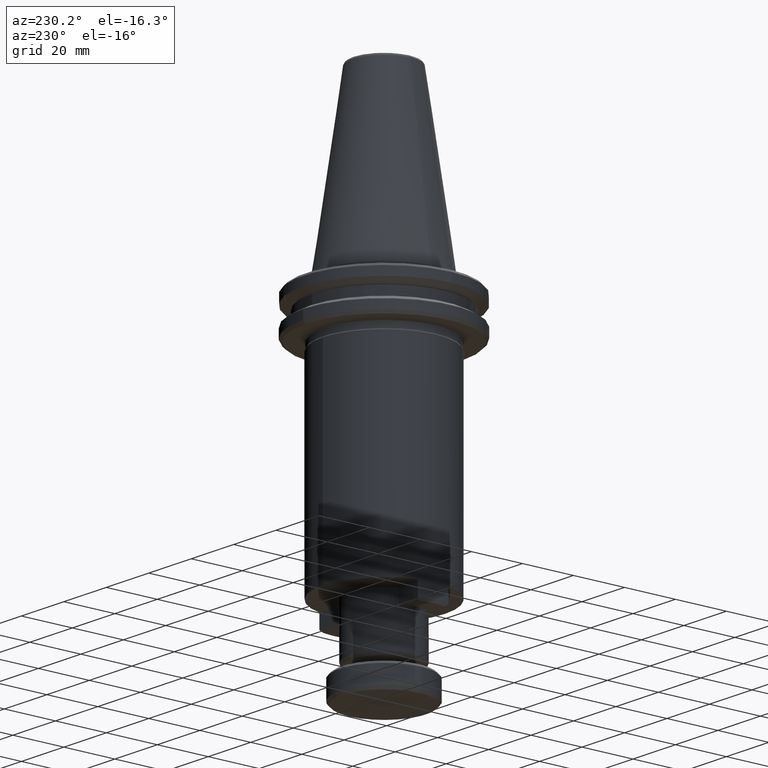
[diagram: clean part render]
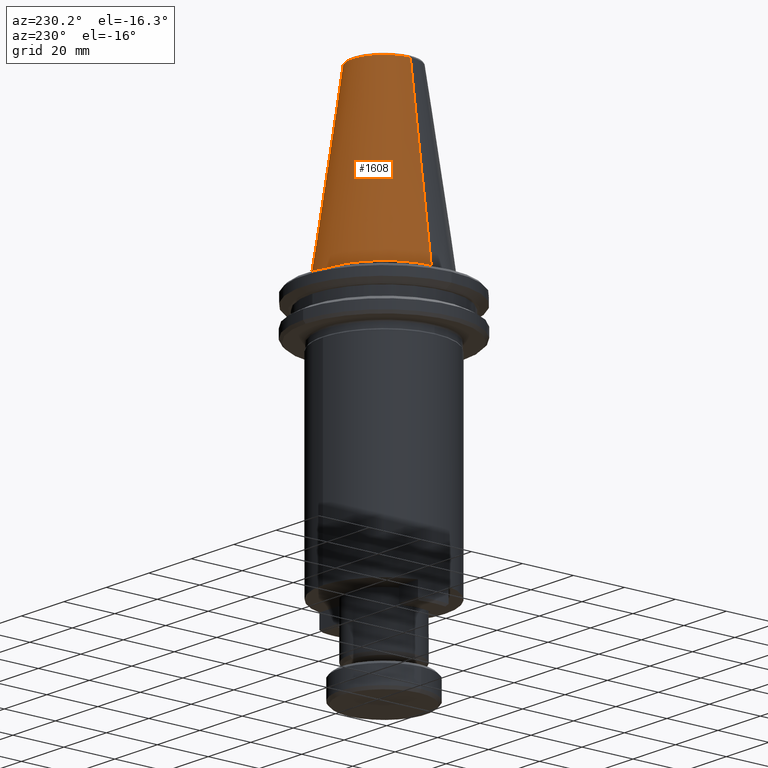
[diagram: same view with one face highlighted and labeled with its STEP entity id]
A machine part, auxiliary view. The second image highlights one B-rep face of the part: STEP entity #1608.
In plain terms, the highlighted conical surface has half-angle 8.297 deg.
Its self-contained STEP definition (entity closure, byte-faithful):
#147 = DIRECTION ( 'NONE',  ( 0.0000000000000000000, 0.0000000000000000000, -1.000000000000000000 ) ) ;
#194 = DIRECTION ( 'NONE',  ( -0.0000000000000000000, 0.0000000000000000000, -1.000000000000000000 ) ) ;
#224 = AXIS2_PLACEMENT_3D ( 'NONE', #2709, #147, #568 ) ;
#240 = CARTESIAN_POINT ( 'NONE',  ( 49.59483096143052400, 87.85641994208592100, 94.21598642355938600 ) ) ;
#291 = FACE_OUTER_BOUND ( 'NONE', #458, .T. ) ;
#371 = CARTESIAN_POINT ( 'NONE',  ( 84.19452633743051700, 87.85641993923056200, 161.7602946505593600 ) ) ;
#395 = LINE ( 'NONE', #2636, #1178 ) ;
#458 = EDGE_LOOP ( 'NONE', ( #532, #524, #710, #1119 ) ) ;
#524 = ORIENTED_EDGE ( 'NONE', *, *, #566, .T. ) ;
#532 = ORIENTED_EDGE ( 'NONE', *, *, #1568, .T. ) ;
#534 = CIRCLE ( 'NONE', #1940, 12.37469537600000700 ) ;
#566 = EDGE_CURVE ( 'NONE', #1856, #1712, #395, .T. ) ;
#568 = DIRECTION ( 'NONE',  ( -1.000000000000000000, 0.0000000000000000000, 0.0000000000000000000 ) ) ;
#667 = CARTESIAN_POINT ( 'NONE',  ( 59.44513558543051300, 87.85641994208592100, 161.7602946505593600 ) ) ;
#710 = ORIENTED_EDGE ( 'NONE', *, *, #2334, .F. ) ;
#766 = DIRECTION ( 'NONE',  ( 0.1443082272694599700, 1.767266086161729500E-017, -0.9895327864918603800 ) ) ;
#905 = VECTOR ( 'NONE', #1855, 1000.000000000000100 ) ;
#926 = CARTESIAN_POINT ( 'NONE',  ( 71.81983096143052600, 87.85641994208592100, 161.7602946505593600 ) ) ;
#932 = LINE ( 'NONE', #1852, #905 ) ;
#1017 = DIRECTION ( 'NONE',  ( 1.000000000000000000, 0.0000000000000000000, 0.0000000000000000000 ) ) ;
#1119 = ORIENTED_EDGE ( 'NONE', *, *, #1956, .F. ) ;
#1124 = VERTEX_POINT ( 'NONE', #667 ) ;
#1178 = VECTOR ( 'NONE', #766, 1000.000000000000100 ) ;
#1425 = AXIS2_PLACEMENT_3D ( 'NONE', #2316, #194, #1017 ) ;
#1510 = DIRECTION ( 'NONE',  ( -1.000000000000000000, 0.0000000000000000000, 0.0000000000000000000 ) ) ;
#1568 = EDGE_CURVE ( 'NONE', #1124, #1856, #534, .T. ) ;
#1608 = ADVANCED_FACE ( 'NONE', ( #291 ), #2540, .T. ) ;
#1647 = DIRECTION ( 'NONE',  ( 0.0000000000000000000, 0.0000000000000000000, -1.000000000000000000 ) ) ;
#1712 = VERTEX_POINT ( 'NONE', #2513 ) ;
#1779 = CIRCLE ( 'NONE', #1425, 22.22499999999999400 ) ;
#1852 = CARTESIAN_POINT ( 'NONE',  ( 49.59483096143052400, 87.85641994208592100, 94.21598642355938600 ) ) ;
#1855 = DIRECTION ( 'NONE',  ( -0.1443082272694599700, 0.0000000000000000000, -0.9895327864918603800 ) ) ;
#1856 = VERTEX_POINT ( 'NONE', #371 ) ;
#1940 = AXIS2_PLACEMENT_3D ( 'NONE', #926, #1647, #1510 ) ;
#1956 = EDGE_CURVE ( 'NONE', #1124, #2519, #932, .T. ) ;
#2316 = CARTESIAN_POINT ( 'NONE',  ( 71.81983096143052600, 87.85641994208592100, 94.21598642355938600 ) ) ;
#2334 = EDGE_CURVE ( 'NONE', #2519, #1712, #1779, .T. ) ;
#2513 = CARTESIAN_POINT ( 'NONE',  ( 94.04483096143052000, 87.85641994208592100, 94.21598642355938600 ) ) ;
#2519 = VERTEX_POINT ( 'NONE', #240 ) ;
#2540 = CONICAL_SURFACE ( 'NONE', #224, 22.22499999999999400, 0.1448138465495948100 ) ;
#2636 = CARTESIAN_POINT ( 'NONE',  ( 94.04483096143052000, 87.85641994208592100, 94.21598642355938600 ) ) ;
#2709 = CARTESIAN_POINT ( 'NONE',  ( 71.81983096143052600, 87.85641994208592100, 94.21598642355938600 ) ) ;